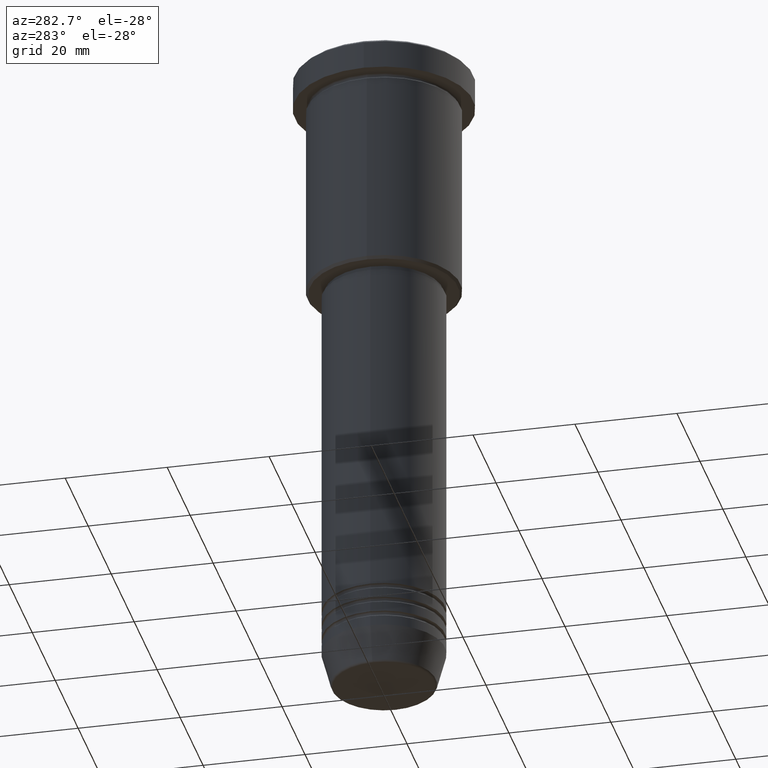
[diagram: clean part render]
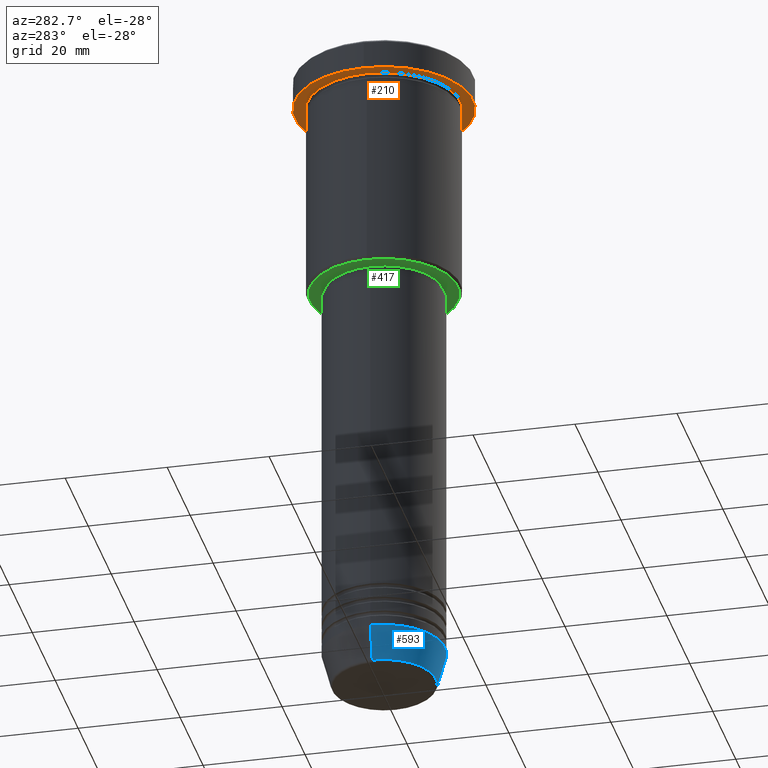
[diagram: same view with three faces highlighted in distinct colors, each labeled with its STEP entity id]
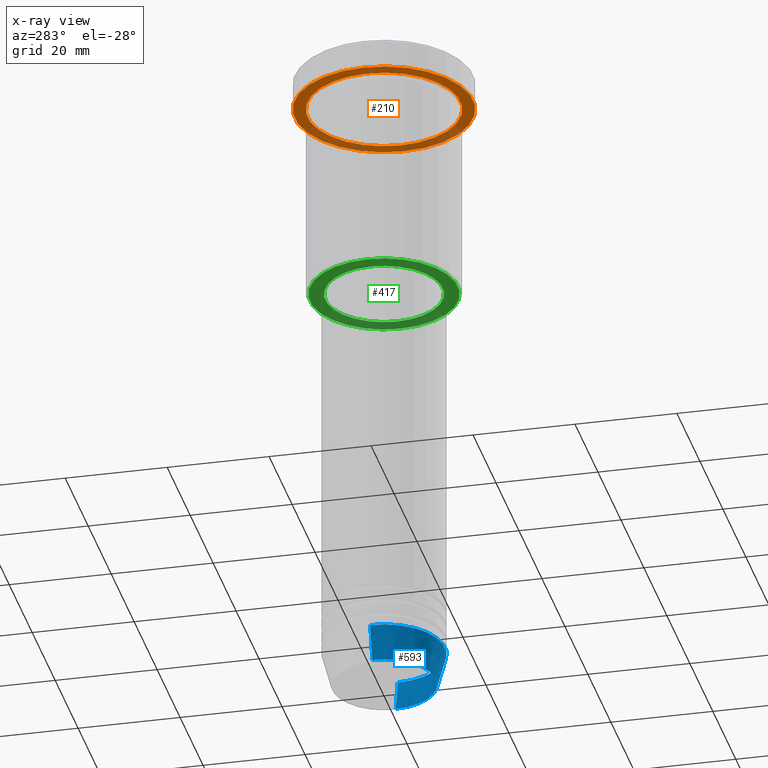
[diagram: x-ray of the same camera — body ghosted, the three highlighted faces saturated]
A machine part, auxiliary view with three faces highlighted in distinct colors.
The next image is the same camera in x-ray (body ghosted, the three faces saturated) — at least one of them is partly hidden behind the body in this view.
Their STEP definitions:

[orange] entity #210 — the highlighted planar face has unit normal (0, 0, -1).
#12 = PLANE ( 'NONE',  #401 ) ;
#17 = FACE_OUTER_BOUND ( 'NONE', #540, .T. ) ;
#49 = VERTEX_POINT ( 'NONE', #418 ) ;
#63 = CIRCLE ( 'NONE', #743, 17.50000000000000000 ) ;
#97 = DIRECTION ( 'NONE',  ( 0.000000000000000000, 0.000000000000000000, -1.000000000000000000 ) ) ;
#164 = ORIENTED_EDGE ( 'NONE', *, *, #432, .T. ) ;
#195 = EDGE_CURVE ( 'NONE', #1047, #968, #326, .T. ) ;
#210 = ADVANCED_FACE ( 'NONE', ( #661, #17 ), #12, .T. ) ;
#262 = CARTESIAN_POINT ( 'NONE',  ( 0.000000000000000000, 0.000000000000000000, -5.999999999999995559 ) ) ;
#295 = DIRECTION ( 'NONE',  ( -0.000000000000000000, -0.000000000000000000, 1.000000000000000000 ) ) ;
#309 = ORIENTED_EDGE ( 'NONE', *, *, #195, .F. ) ;
#326 = CIRCLE ( 'NONE', #908, 17.50000000000000000 ) ;
#362 = DIRECTION ( 'NONE',  ( -0.000000000000000000, -0.000000000000000000, 1.000000000000000000 ) ) ;
#376 = CARTESIAN_POINT ( 'NONE',  ( 0.000000000000000000, 17.50000000000000000, -5.999999999999995559 ) ) ;
#401 = AXIS2_PLACEMENT_3D ( 'NONE', #376, #97, #916 ) ;
#418 = CARTESIAN_POINT ( 'NONE',  ( 15.00000000000000000, 1.836970198721029589E-15, -5.999999999999994671 ) ) ;
#432 = EDGE_CURVE ( 'NONE', #49, #1006, #1027, .T. ) ;
#495 = DIRECTION ( 'NONE',  ( -0.000000000000000000, -0.000000000000000000, 1.000000000000000000 ) ) ;
#540 = EDGE_LOOP ( 'NONE', ( #309, #850 ) ) ;
#542 = DIRECTION ( 'NONE',  ( -0.000000000000000000, -0.000000000000000000, 1.000000000000000000 ) ) ;
#552 = DIRECTION ( 'NONE',  ( -1.000000000000000000, 0.000000000000000000, 0.000000000000000000 ) ) ;
#609 = CIRCLE ( 'NONE', #1074, 15.00000000000000000 ) ;
#617 = CARTESIAN_POINT ( 'NONE',  ( 17.50000000000000000, 0.000000000000000000, -5.999999999999995559 ) ) ;
#661 = FACE_BOUND ( 'NONE', #1073, .T. ) ;
#723 = DIRECTION ( 'NONE',  ( 1.000000000000000000, 0.000000000000000000, 0.000000000000000000 ) ) ;
#743 = AXIS2_PLACEMENT_3D ( 'NONE', #262, #542, #899 ) ;
#850 = ORIENTED_EDGE ( 'NONE', *, *, #1041, .F. ) ;
#852 = AXIS2_PLACEMENT_3D ( 'NONE', #924, #495, #949 ) ;
#899 = DIRECTION ( 'NONE',  ( 1.000000000000000000, 0.000000000000000000, 0.000000000000000000 ) ) ;
#908 = AXIS2_PLACEMENT_3D ( 'NONE', #1180, #362, #723 ) ;
#916 = DIRECTION ( 'NONE',  ( -1.000000000000000000, 0.000000000000000000, -0.000000000000000000 ) ) ;
#924 = CARTESIAN_POINT ( 'NONE',  ( 0.000000000000000000, 0.000000000000000000, -5.999999999999995559 ) ) ;
#949 = DIRECTION ( 'NONE',  ( -1.000000000000000000, 0.000000000000000000, 0.000000000000000000 ) ) ;
#968 = VERTEX_POINT ( 'NONE', #1082 ) ;
#1006 = VERTEX_POINT ( 'NONE', #1076 ) ;
#1027 = CIRCLE ( 'NONE', #852, 15.00000000000000000 ) ;
#1041 = EDGE_CURVE ( 'NONE', #968, #1047, #63, .T. ) ;
#1047 = VERTEX_POINT ( 'NONE', #617 ) ;
#1067 = ORIENTED_EDGE ( 'NONE', *, *, #1138, .T. ) ;
#1073 = EDGE_LOOP ( 'NONE', ( #1067, #164 ) ) ;
#1074 = AXIS2_PLACEMENT_3D ( 'NONE', #1110, #295, #552 ) ;
#1076 = CARTESIAN_POINT ( 'NONE',  ( -15.00000000000000000, 0.000000000000000000, -5.999999999999994671 ) ) ;
#1082 = CARTESIAN_POINT ( 'NONE',  ( -17.50000000000000000, 2.143131898507868248E-15, -5.999999999999995559 ) ) ;
#1110 = CARTESIAN_POINT ( 'NONE',  ( 0.000000000000000000, 0.000000000000000000, -5.999999999999995559 ) ) ;
#1138 = EDGE_CURVE ( 'NONE', #1006, #49, #609, .T. ) ;
#1180 = CARTESIAN_POINT ( 'NONE',  ( 0.000000000000000000, 0.000000000000000000, -5.999999999999995559 ) ) ;

[blue] entity #593 — the highlighted conical surface has half-angle 15 deg.
#8 = AXIS2_PLACEMENT_3D ( 'NONE', #275, #189, #733 ) ;
#74 = ORIENTED_EDGE ( 'NONE', *, *, #966, .T. ) ;
#78 = AXIS2_PLACEMENT_3D ( 'NONE', #268, #990, #263 ) ;
#157 = VERTEX_POINT ( 'NONE', #347 ) ;
#186 = VECTOR ( 'NONE', #715, 1000.000000000000000 ) ;
#189 = DIRECTION ( 'NONE',  ( -0.000000000000000000, -0.000000000000000000, 1.000000000000000000 ) ) ;
#238 = CARTESIAN_POINT ( 'NONE',  ( 10.22365507213718949, 0.000000000000000000, -130.6294095225512422 ) ) ;
#263 = DIRECTION ( 'NONE',  ( 1.000000000000000000, 0.000000000000000000, 0.000000000000000000 ) ) ;
#268 = CARTESIAN_POINT ( 'NONE',  ( 0.000000000000000000, 0.000000000000000000, -124.0000000000000000 ) ) ;
#275 = CARTESIAN_POINT ( 'NONE',  ( 0.000000000000000000, 0.000000000000000000, -124.0000000000000000 ) ) ;
#328 = AXIS2_PLACEMENT_3D ( 'NONE', #455, #1177, #1077 ) ;
#347 = CARTESIAN_POINT ( 'NONE',  ( -10.22365507213718949, 1.360806402472382744E-15, -130.6294095225512422 ) ) ;
#353 = VECTOR ( 'NONE', #1181, 1000.000000000000000 ) ;
#398 = VERTEX_POINT ( 'NONE', #502 ) ;
#423 = CONICAL_SURFACE ( 'NONE', #78, 12.00000000000000000, 0.2617993877991500740 ) ;
#439 = ORIENTED_EDGE ( 'NONE', *, *, #550, .F. ) ;
#455 = CARTESIAN_POINT ( 'NONE',  ( 0.000000000000000000, 0.000000000000000000, -130.6294095225512422 ) ) ;
#502 = CARTESIAN_POINT ( 'NONE',  ( 12.00000000000000000, 0.000000000000000000, -124.0000000000000000 ) ) ;
#534 = CIRCLE ( 'NONE', #328, 10.22365507213718949 ) ;
#544 = EDGE_CURVE ( 'NONE', #157, #921, #534, .T. ) ;
#546 = LINE ( 'NONE', #1096, #353 ) ;
#550 = EDGE_CURVE ( 'NONE', #157, #1105, #721, .T. ) ;
#561 = ORIENTED_EDGE ( 'NONE', *, *, #544, .T. ) ;
#575 = EDGE_LOOP ( 'NONE', ( #439, #561, #74, #792 ) ) ;
#593 = ADVANCED_FACE ( 'NONE', ( #1103 ), #423, .T. ) ;
#715 = DIRECTION ( 'NONE',  ( -0.2588190451025213501, 3.169619151431772337E-17, 0.9659258262890680902 ) ) ;
#721 = LINE ( 'NONE', #734, #186 ) ;
#733 = DIRECTION ( 'NONE',  ( 1.000000000000000000, 0.000000000000000000, 0.000000000000000000 ) ) ;
#734 = CARTESIAN_POINT ( 'NONE',  ( -12.00000000000000000, 1.469576158976823947E-15, -124.0000000000000000 ) ) ;
#792 = ORIENTED_EDGE ( 'NONE', *, *, #997, .F. ) ;
#805 = CIRCLE ( 'NONE', #8, 12.00000000000000000 ) ;
#921 = VERTEX_POINT ( 'NONE', #238 ) ;
#966 = EDGE_CURVE ( 'NONE', #921, #398, #546, .T. ) ;
#990 = DIRECTION ( 'NONE',  ( -0.000000000000000000, -0.000000000000000000, 1.000000000000000000 ) ) ;
#997 = EDGE_CURVE ( 'NONE', #1105, #398, #805, .T. ) ;
#1077 = DIRECTION ( 'NONE',  ( 1.000000000000000000, 0.000000000000000000, 0.000000000000000000 ) ) ;
#1096 = CARTESIAN_POINT ( 'NONE',  ( 12.00000000000000000, 0.000000000000000000, -124.0000000000000000 ) ) ;
#1103 = FACE_OUTER_BOUND ( 'NONE', #575, .T. ) ;
#1105 = VERTEX_POINT ( 'NONE', #1120 ) ;
#1120 = CARTESIAN_POINT ( 'NONE',  ( -12.00000000000000000, 1.469576158976823947E-15, -124.0000000000000000 ) ) ;
#1177 = DIRECTION ( 'NONE',  ( -0.000000000000000000, -0.000000000000000000, 1.000000000000000000 ) ) ;
#1181 = DIRECTION ( 'NONE',  ( 0.2588190451025213501, 0.000000000000000000, 0.9659258262890680902 ) ) ;

[green] entity #417 — the highlighted planar face has unit normal (0, 0, -1).
#54 = FACE_OUTER_BOUND ( 'NONE', #839, .T. ) ;
#59 = AXIS2_PLACEMENT_3D ( 'NONE', #272, #71, #705 ) ;
#68 = VERTEX_POINT ( 'NONE', #128 ) ;
#71 = DIRECTION ( 'NONE',  ( 0.000000000000000000, 0.000000000000000000, -1.000000000000000000 ) ) ;
#83 = EDGE_CURVE ( 'NONE', #68, #613, #350, .T. ) ;
#87 = ORIENTED_EDGE ( 'NONE', *, *, #517, .T. ) ;
#95 = EDGE_LOOP ( 'NONE', ( #871, #454 ) ) ;
#101 = CARTESIAN_POINT ( 'NONE',  ( 0.000000000000000000, 0.000000000000000000, -45.99999999999998579 ) ) ;
#128 = CARTESIAN_POINT ( 'NONE',  ( -11.50000000000000000, 1.408343819019456176E-15, -45.99999999999998579 ) ) ;
#159 = DIRECTION ( 'NONE',  ( -1.000000000000000000, 0.000000000000000000, -0.000000000000000000 ) ) ;
#160 = EDGE_CURVE ( 'NONE', #1062, #364, #625, .T. ) ;
#183 = DIRECTION ( 'NONE',  ( -1.000000000000000000, 0.000000000000000000, 0.000000000000000000 ) ) ;
#218 = CIRCLE ( 'NONE', #1168, 14.50000000000001066 ) ;
#221 = CIRCLE ( 'NONE', #330, 11.50000000000000000 ) ;
#241 = PLANE ( 'NONE',  #709 ) ;
#272 = CARTESIAN_POINT ( 'NONE',  ( 0.000000000000000000, 0.000000000000000000, -45.99999999999998579 ) ) ;
#318 = CARTESIAN_POINT ( 'NONE',  ( -14.50000000000001066, 1.806354028742346591E-15, -45.99999999999998579 ) ) ;
#330 = AXIS2_PLACEMENT_3D ( 'NONE', #986, #437, #999 ) ;
#344 = FACE_BOUND ( 'NONE', #95, .T. ) ;
#350 = CIRCLE ( 'NONE', #668, 11.50000000000000000 ) ;
#364 = VERTEX_POINT ( 'NONE', #318 ) ;
#417 = ADVANCED_FACE ( 'NONE', ( #54, #344 ), #241, .T. ) ;
#437 = DIRECTION ( 'NONE',  ( -0.000000000000000000, -0.000000000000000000, 1.000000000000000000 ) ) ;
#454 = ORIENTED_EDGE ( 'NONE', *, *, #83, .T. ) ;
#488 = ORIENTED_EDGE ( 'NONE', *, *, #160, .T. ) ;
#517 = EDGE_CURVE ( 'NONE', #364, #1062, #218, .T. ) ;
#522 = DIRECTION ( 'NONE',  ( 0.000000000000000000, 0.000000000000000000, -1.000000000000000000 ) ) ;
#554 = DIRECTION ( 'NONE',  ( 0.000000000000000000, 0.000000000000000000, -1.000000000000000000 ) ) ;
#613 = VERTEX_POINT ( 'NONE', #1004 ) ;
#625 = CIRCLE ( 'NONE', #59, 14.50000000000001066 ) ;
#660 = CARTESIAN_POINT ( 'NONE',  ( 0.000000000000000000, 0.000000000000000000, -45.99999999999998579 ) ) ;
#668 = AXIS2_PLACEMENT_3D ( 'NONE', #660, #1021, #1034 ) ;
#705 = DIRECTION ( 'NONE',  ( -1.000000000000000000, 0.000000000000000000, 0.000000000000000000 ) ) ;
#709 = AXIS2_PLACEMENT_3D ( 'NONE', #962, #522, #159 ) ;
#839 = EDGE_LOOP ( 'NONE', ( #488, #87 ) ) ;
#871 = ORIENTED_EDGE ( 'NONE', *, *, #967, .T. ) ;
#962 = CARTESIAN_POINT ( 'NONE',  ( 0.000000000000000000, 15.00000000000000000, -45.99999999999998579 ) ) ;
#967 = EDGE_CURVE ( 'NONE', #613, #68, #221, .T. ) ;
#986 = CARTESIAN_POINT ( 'NONE',  ( 0.000000000000000000, 0.000000000000000000, -45.99999999999998579 ) ) ;
#999 = DIRECTION ( 'NONE',  ( 1.000000000000000000, 0.000000000000000000, 0.000000000000000000 ) ) ;
#1004 = CARTESIAN_POINT ( 'NONE',  ( 11.50000000000000000, 0.000000000000000000, -45.99999999999998579 ) ) ;
#1021 = DIRECTION ( 'NONE',  ( -0.000000000000000000, -0.000000000000000000, 1.000000000000000000 ) ) ;
#1034 = DIRECTION ( 'NONE',  ( 1.000000000000000000, 0.000000000000000000, 0.000000000000000000 ) ) ;
#1062 = VERTEX_POINT ( 'NONE', #1101 ) ;
#1101 = CARTESIAN_POINT ( 'NONE',  ( 14.50000000000001066, 0.000000000000000000, -45.99999999999998579 ) ) ;
#1168 = AXIS2_PLACEMENT_3D ( 'NONE', #101, #554, #183 ) ;